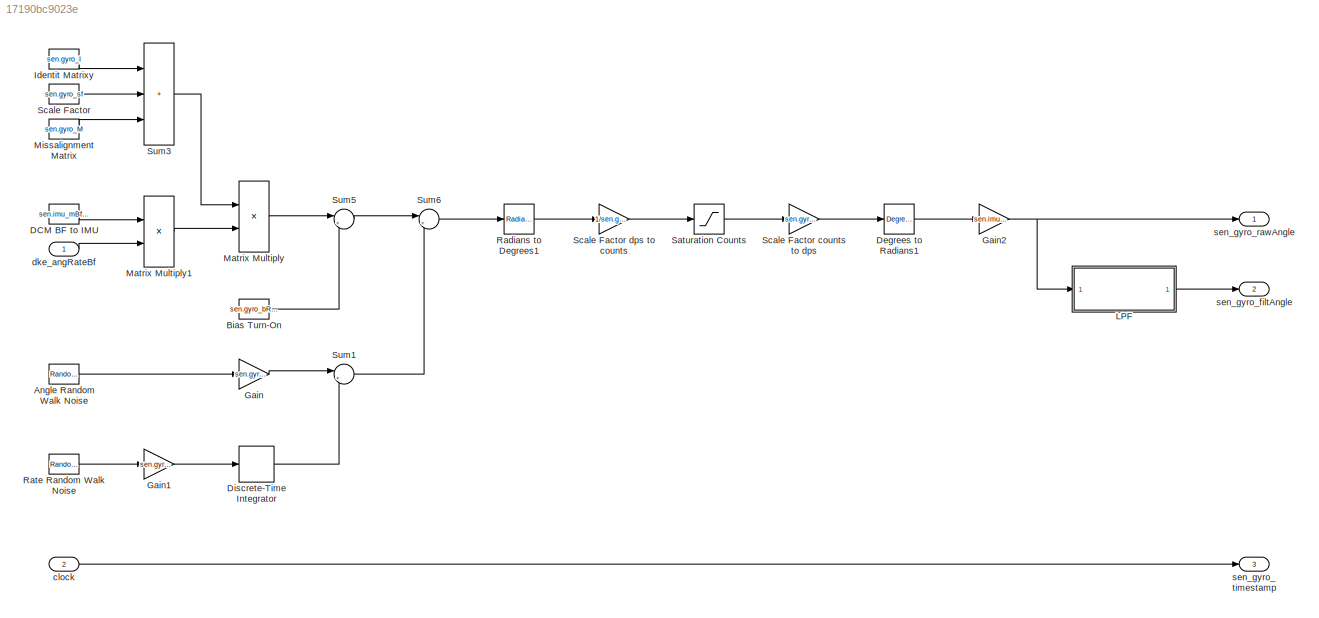
MODEL slx_17190bc9023e
KIND model
CONFIG AbsTol = auto
CONFIG EnableMultiTasking = off
CONFIG FixedStep = sen.imu_rate
CONFIG MaxStep = auto
CONFIG MinStep = auto
CONFIG RelTol = 1e-3
CONFIG SampleTimeConstraint = Unconstrained
CONFIG SolverName = FixedStepDiscrete
CONFIG StartTime = 0.0
CONFIG StopTime = 20000
BLOCK [RandomNumber] Angle Random Walk Noise
  NameLocation = left
  SampleTime = sen.imu_rate
  Seed = sen.gyro_arw_seed
BLOCK [Constant] Bias Turn-On
  NameLocation = left
  Value = sen.gyro_bRunRun
BLOCK [Constant] DCM BF to IMU
  NameLocation = left
  Value = sen.imu_mBfToImu
BLOCK [Reference] Degrees to Radians1  REF=simulink_extras/Transformations/Degrees to
Radians
  Ports = [1, 1]
  SourceBlock = simulink_extras/Transformations/Degrees to\nRadians
  SourceProductBaseCode = SL
  SourceType = DegreesToRadians
BLOCK [DiscreteIntegrator] Discrete-Time Integrator
  ICPrevOutput = DiscIntNeverNeededParam
  ICPrevScaledInput = DiscIntNeverNeededParam
  InitialConditionSetting = Auto
  Ports = [1, 1]
  SampleTime = sen.imu_rate
BLOCK [Gain] Gain
  Gain = sen.gyro_arw
BLOCK [Gain] Gain1
  Gain = sen.gyro_rrw
BLOCK [Gain] Gain2
  Gain = sen.imu_rate
BLOCK [Constant] Identit Matrixy
  NameLocation = left
  Value = sen.gyro_I
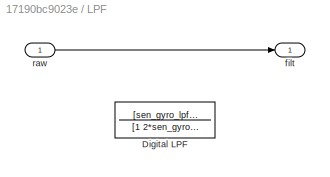
BLOCK [SubSystem] LPF
  Ports = [1, 1]
  RequestExecContextInheritance = off
BLOCK [TransferFcn] LPF/Digital LPF 
  Commented = on
  Denominator = [1 2*sen_gyro_dyn_zeta*sen_gyro_lpf_wc sen_gyro_lpf_wc^2]
  Numerator = [sen_gyro_lpf_wc^2]
BLOCK [Outport] LPF/filt
BLOCK [Inport] LPF/raw
BLOCK [Product] Matrix Multiply
  Multiplication = Matrix(*)
  Ports = [2, 1]
BLOCK [Product] Matrix Multiply1
  Multiplication = Matrix(*)
  Ports = [2, 1]
BLOCK [Constant] Missalignment Matrix
  NameLocation = left
  Value = sen.gyro_M
BLOCK [Reference] Radians to Degrees1  REF=simulink_extras/Transformations/Radians
to Degrees
  Ports = [1, 1]
  SourceBlock = simulink_extras/Transformations/Radians\nto Degrees
  SourceProductBaseCode = SL
  SourceType = RadiansToDegrees
BLOCK [RandomNumber] Rate Random Walk Noise
  NameLocation = left
  SampleTime = sen.imu_rate
  Seed = sen.gyro_rrw_seed
BLOCK [Saturate] Saturation Counts 
  LowerLimit = -2^23
  UpperLimit = 2^23
BLOCK [Constant] Scale Factor
  NameLocation = left
  Value = sen.gyro_sf
BLOCK [Gain] Scale Factor counts to dps 
  Gain = sen.gyro_sensitivity
BLOCK [Gain] Scale Factor dps to counts 
  Gain = 1/sen.gyro_sensitivity
BLOCK [Sum] Sum1
  Inputs = |++
  Ports = [2, 1]
BLOCK [Sum] Sum3
  IconShape = rectangular
  Inputs = +++
  Ports = [3, 1]
BLOCK [Sum] Sum5
  Inputs = |++
  Ports = [2, 1]
BLOCK [Sum] Sum6
  Inputs = |++
  Ports = [2, 1]
BLOCK [Inport] clock
  NameLocation = left
  OutDataTypeStr = double
  Port = 2
  PortDimensions = [1,1]
  Unit = s
BLOCK [Inport] dke_angRateBf
  NameLocation = left
  OutDataTypeStr = double
  PortDimensions = [3,1]
  Unit = rad/s
BLOCK [Outport] sen_gyro_filtAngle
  NameLocation = right
  OutDataTypeStr = double
  Port = 2
  PortDimensions = [3,1]
  Unit = rad
BLOCK [Outport] sen_gyro_rawAngle
  NameLocation = right
  OutDataTypeStr = double
  PortDimensions = [3,1]
  Unit = rad
BLOCK [Outport] sen_gyro_timestamp
  NameLocation = right
  OutDataTypeStr = double
  Port = 3
  PortDimensions = [1,1]
  Unit = s
LINE Angle Random Walk Noise:1 -> Gain:1
LINE Bias Turn-On:1 -> Sum5:2
LINE DCM BF to IMU:1 -> Matrix Multiply1:1
LINE Degrees to Radians1:1 -> Gain2:1
LINE Discrete-Time Integrator:1 -> Sum1:2
LINE Gain1:1 -> Discrete-Time Integrator:1
NET Gain2:1 -> LPF:1, sen_gyro_rawAngle:1
LINE Gain:1 -> Sum1:1
LINE Identit Matrixy:1 -> Sum3:1
LINE LPF/raw:1 -> LPF/filt:1
LINE LPF:1 -> sen_gyro_filtAngle:1
LINE Matrix Multiply1:1 -> Matrix Multiply:2
LINE Matrix Multiply:1 -> Sum5:1
LINE Missalignment Matrix:1 -> Sum3:3
LINE Radians to Degrees1:1 -> Scale Factor dps to counts :1
LINE Rate Random Walk Noise:1 -> Gain1:1
LINE Saturation Counts :1 -> Scale Factor counts to dps :1
LINE Scale Factor counts to dps :1 -> Degrees to Radians1:1
LINE Scale Factor dps to counts :1 -> Saturation Counts :1
LINE Scale Factor:1 -> Sum3:2
LINE Sum1:1 -> Sum6:2
LINE Sum3:1 -> Matrix Multiply:1
LINE Sum5:1 -> Sum6:1
LINE Sum6:1 -> Radians to Degrees1:1
LINE clock:1 -> sen_gyro_timestamp:1
LINE dke_angRateBf:1 -> Matrix Multiply1:2
note: NET lines group one-source signal fan-out (src -> all destinations, sorted); 1:1 wires keep LINE
